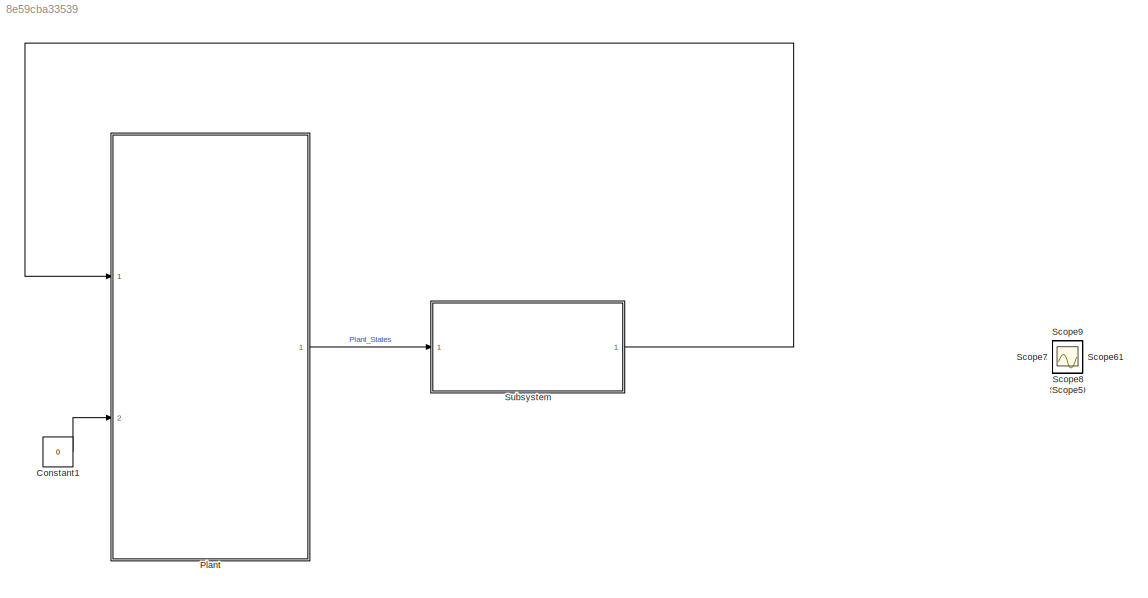
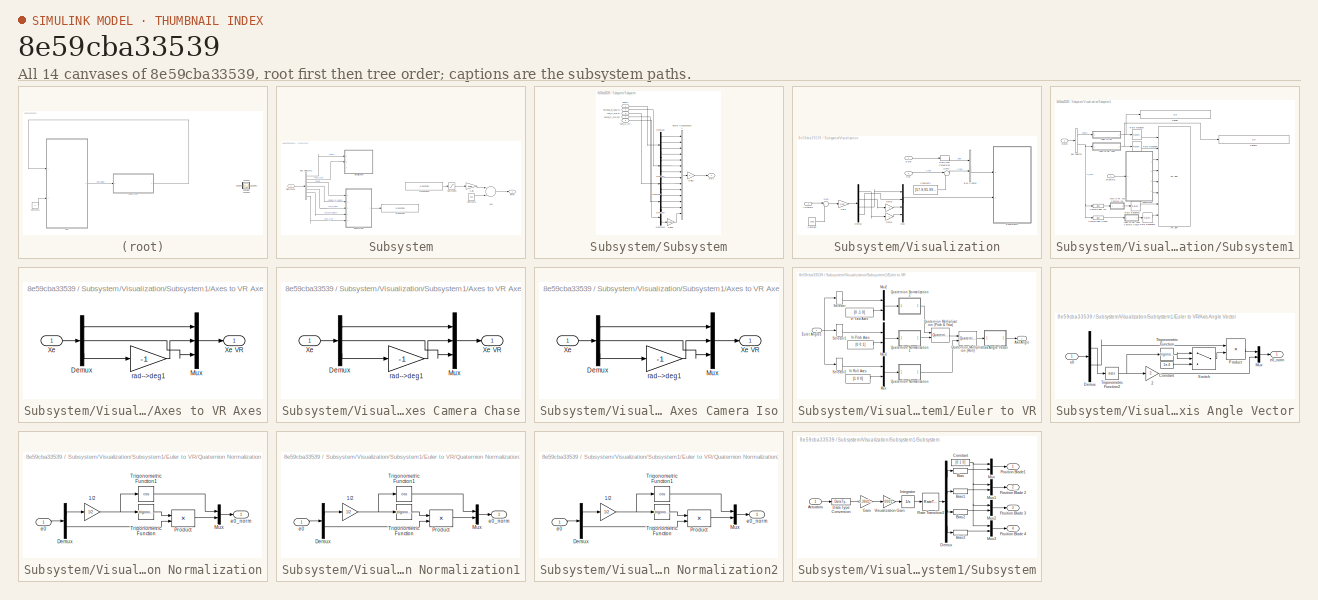
[diagram: thumbnail index - all 14 canvases of the model, root first then tree order]
MODEL slx_8e59cba33539
KIND model
BLOCK [Constant] Constant1
  OutDataTypeStr = Inherit: Inherit via back propagation
  Value = 0
BLOCK [ModelReference] Plant
  ModelNameDialog = Model.slx
  ModelReferenceVersion = 1.125
  Ports = [2, 1]
BLOCK [Scope] Scope
  Floating = off
  IOType = viewer
  NumInputPorts = 1
  Ports = []
  ScopeSpecificationString = Simulink.scopes.TimeScopeBlockCfg('CurrentConfiguration', extmgr.ConfigurationSet(extmgr.Configuration('Core','General UI',true),extmgr.Configuration('Core','Source UI',true),extmgr.Configuration('Sources','WiredSimulink',true),extmgr.Configuration('Visuals','Time Domain',true,'SerializedDisplays',{struct('MinYLimReal','-0.32725','MaxYLimReal','0.32725','YLabelReal','','MinYLimMag','0.00000','MaxY...<+1350ch>
BLOCK [Scope] Scope1
  Floating = off
  IOType = viewer
  NumInputPorts = 1
  Ports = []
  ScopeSpecificationString = Simulink.scopes.TimeScopeBlockCfg('CurrentConfiguration', extmgr.ConfigurationSet(extmgr.Configuration('Core','General UI',true),extmgr.Configuration('Core','Source UI',true),extmgr.Configuration('Sources','WiredSimulink',true,'DataLoggingVariableName','ScopeData1'),extmgr.Configuration('Visuals','Time Domain',true,'SerializedDisplays',{struct('MinYLimReal','-0.32725','MaxYLimReal','0.32725','YLab...<+1389ch>
BLOCK [Scope] Scope10
  Floating = off
  IOType = viewer
  NumInputPorts = 1
  Ports = []
  ScopeSpecificationString = Simulink.scopes.TimeScopeBlockCfg('CurrentConfiguration', extmgr.ConfigurationSet(extmgr.Configuration('Core','General UI',true),extmgr.Configuration('Core','Source UI',true),extmgr.Configuration('Sources','WiredSimulink',true,'DataLoggingVariableName','ScopeData2'),extmgr.Configuration('Visuals','Time Domain',true,'SerializedDisplays',{struct('MinYLimReal','-0.5','MaxYLimReal','-0.3','YLabelReal'...<+1392ch>
BLOCK [Scope] Scope11
  Floating = off
  IOType = viewer
  NumInputPorts = 1
  Ports = []
  ScopeSpecificationString = Simulink.scopes.TimeScopeBlockCfg('CurrentConfiguration', extmgr.ConfigurationSet(extmgr.Configuration('Core','General UI',true),extmgr.Configuration('Core','Source UI',true),extmgr.Configuration('Sources','WiredSimulink',true,'DataLoggingVariableName','ScopeData3'),extmgr.Configuration('Visuals','Time Domain',true,'SerializedDisplays',{struct('MinYLimReal','-1.00000','MaxYLimReal','1.00000','YLab...<+1389ch>
BLOCK [Scope] Scope2
  Floating = off
  IOType = viewer
  NumInputPorts = 1
  Ports = []
  ScopeSpecificationString = Simulink.scopes.TimeScopeBlockCfg('CurrentConfiguration', extmgr.ConfigurationSet(extmgr.Configuration('Core','General UI',true),extmgr.Configuration('Core','Source UI',true),extmgr.Configuration('Sources','WiredSimulink',true,'DataLoggingVariableName','ScopeData2'),extmgr.Configuration('Visuals','Time Domain',true,'SerializedDisplays',{struct('MinYLimReal','-77.53625','MaxYLimReal','697.82627','Y...<+1399ch>
BLOCK [Scope] Scope3
  Floating = off
  IOType = viewer
  NumInputPorts = 1
  Ports = []
  ScopeSpecificationString = Simulink.scopes.TimeScopeBlockCfg('CurrentConfiguration', extmgr.ConfigurationSet(extmgr.Configuration('Core','General UI',true),extmgr.Configuration('Core','Source UI',true),extmgr.Configuration('Sources','WiredSimulink',true,'DataLoggingVariableName','ScopeData3'),extmgr.Configuration('Visuals','Time Domain',true,'SerializedDisplays',{struct('MinYLimReal','-71.5585','MaxYLimReal','644.02649','YL...<+1397ch>
BLOCK [Scope] Scope4
  Floating = off
  IOType = viewer
  NumInputPorts = 1
  Ports = []
  ScopeSpecificationString = Simulink.scopes.TimeScopeBlockCfg('CurrentConfiguration', extmgr.ConfigurationSet(extmgr.Configuration('Core','General UI',true),extmgr.Configuration('Core','Source UI',true),extmgr.Configuration('Sources','WiredSimulink',true,'DataLoggingVariableName','ScopeData4'),extmgr.Configuration('Visuals','Time Domain',true,'SerializedDisplays',{struct('MinYLimReal','-77.57989','MaxYLimReal','698.21897','Y...<+1399ch>
BLOCK [Scope] Scope5
  Floating = off
  IOType = viewer
  NumInputPorts = 1
  Ports = []
  ScopeSpecificationString = Simulink.scopes.TimeScopeBlockCfg('CurrentConfiguration', extmgr.ConfigurationSet(extmgr.Configuration('Core','General UI',true),extmgr.Configuration('Core','Source UI',true),extmgr.Configuration('Sources','WiredSimulink',true,'DataLoggingVariableName','ScopeData5'),extmgr.Configuration('Visuals','Time Domain',true,'SerializedDisplays',{struct('MinYLimReal','-0.00025','MaxYLimReal','0.00225','YLab...<+1414ch>
BLOCK [Scope] Scope6
  Floating = off
  IOType = viewer
  NumInputPorts = 1
  Ports = []
  ScopeSpecificationString = Simulink.scopes.TimeScopeBlockCfg('CurrentConfiguration', extmgr.ConfigurationSet(extmgr.Configuration('Core','General UI',true),extmgr.Configuration('Core','Source UI',true),extmgr.Configuration('Sources','WiredSimulink',true,'DataLoggingVariableName','ScopeData6'),extmgr.Configuration('Visuals','Time Domain',true,'SerializedDisplays',{struct('MinYLimReal','-0.4345','MaxYLimReal','0.0505','YLabel...<+1383ch>
BLOCK [Scope] Scope7
  Floating = off
  IOType = viewer
  NumInputPorts = 1
  Ports = []
  ScopeSpecificationString = Simulink.scopes.TimeScopeBlockCfg('CurrentConfiguration', extmgr.ConfigurationSet(extmgr.Configuration('Core','General UI',true),extmgr.Configuration('Core','Source UI',true),extmgr.Configuration('Sources','WiredSimulink',true,'DataLoggingVariableName','ScopeData1'),extmgr.Configuration('Visuals','Time Domain',true,'SerializedDisplays',{struct('MinYLimReal','-1.6835','MaxYLimReal','-1.6685','YLabe...<+1409ch>
BLOCK [Scope] Scope8
  Floating = off
  IOType = viewer
  NumInputPorts = 1
  Ports = []
  ScopeSpecificationString = Simulink.scopes.TimeScopeBlockCfg('CurrentConfiguration', extmgr.ConfigurationSet(extmgr.Configuration('Core','General UI',true),extmgr.Configuration('Core','Source UI',true),extmgr.Configuration('Sources','WiredSimulink',true,'DataLoggingVariableName','ScopeData1'),extmgr.Configuration('Visuals','Time Domain',true,'SerializedDisplays',{struct('MinYLimReal','-1.00000','MaxYLimReal','1.00000','YLab...<+1388ch>
BLOCK [Scope] Scope9
  Floating = off
  IOType = viewer
  NumInputPorts = 1
  Ports = []
  ScopeSpecificationString = Simulink.scopes.TimeScopeBlockCfg('CurrentConfiguration', extmgr.ConfigurationSet(extmgr.Configuration('Core','General UI',true),extmgr.Configuration('Core','Source UI',true),extmgr.Configuration('Sources','WiredSimulink',true,'DataLoggingVariableName','ScopeData1'),extmgr.Configuration('Visuals','Time Domain',true,'SerializedDisplays',{struct('MinYLimReal','-1.00000','MaxYLimReal','1.00000','YLab...<+1449ch>
BLOCK [SubSystem] Subsystem
  Ports = [1, 1]
  RequestExecContextInheritance = off
BLOCK [Sum] Subsystem/Add
  InputSameDT = off
  OutDataTypeStr = Inherit: Inherit via internal rule
  Ports = [2, 1]
  SaturateOnIntegerOverflow = off
BLOCK [BusSelector] Subsystem/Bus Selector2
  OutputAsBus = off
  OutputSignals = euler,pos_O_m,quat,omega_B_radDs,vel_O_mDs,accel_O_mDs2,pos_O_m
  Ports = [1, 7]
BLOCK [Constant] Subsystem/Constant2
  OutDataTypeStr = uint16
  Value = 950
BLOCK [Gain] Subsystem/Gain
  Gain = 1000
  OutDataTypeStr = uint16
  ParamDataTypeStr = Inherit: Inherit via internal rule
  SaturateOnIntegerOverflow = off
BLOCK [Outport] Subsystem/PWM
  IconDisplay = Port number
BLOCK [Inport] Subsystem/PlantState
  IconDisplay = Port number
BLOCK [S-Function] Subsystem/S-Function
  EnableBusSupport = off
  FunctionName = MavlinkSerial_InHilStateQuaternion
  Ports = [1]
  SFcnIsStateOwnerBlock = off
  SFunctionDeploymentMode = off
BLOCK [S-Function] Subsystem/S-Function1
  EnableBusSupport = off
  FunctionName = MavlinkSerial_OutActuatorControl
  Ports = [0, 1]
  SFcnIsStateOwnerBlock = off
  SFunctionDeploymentMode = off
BLOCK [Saturate] Subsystem/Saturation
  InputPortMap = u0
  LowerLimit = 0
  Ports = [1, 1]
  UpperLimit = 1
BLOCK [SubSystem] Subsystem/Subsystem
  Ports = [5, 1]
  RequestExecContextInheritance = off
BLOCK [Inport] Subsystem/Subsystem/<accel_O_mDs2>
  IconDisplay = Port number
  Port = 4
BLOCK [Inport] Subsystem/Subsystem/<omega_B_radDs>
  IconDisplay = Port number
  Port = 2
BLOCK [Inport] Subsystem/Subsystem/<pos_O_m>
  IconDisplay = Port number
  Port = 5
BLOCK [Inport] Subsystem/Subsystem/<quat>
  IconDisplay = Port number
BLOCK [Inport] Subsystem/Subsystem/<vel_O_mDs>
  IconDisplay = Port number
  Port = 3
BLOCK [Demux] Subsystem/Subsystem/Demux10
  DisplayOption = bar
  Outputs = 3
  Ports = [1, 3]
BLOCK [Demux] Subsystem/Subsystem/Demux6
  DisplayOption = bar
  Ports = [1, 4]
BLOCK [Demux] Subsystem/Subsystem/Demux7
  DisplayOption = bar
  Outputs = 3
  Ports = [1, 3]
BLOCK [Demux] Subsystem/Subsystem/Demux8
  DisplayOption = bar
  Outputs = 3
  Ports = [1, 3]
BLOCK [Demux] Subsystem/Subsystem/Demux9
  DisplayOption = bar
  Outputs = 3
  Ports = [1, 3]
BLOCK [Gain] Subsystem/Subsystem/Gain2
  OutDataTypeStr = double
  ParamDataTypeStr = Inherit: Inherit via internal rule
  SaturateOnIntegerOverflow = off
BLOCK [Gain] Subsystem/Subsystem/Gain3
  Gain = 1000
  OutDataTypeStr = Inherit: Inherit via internal rule
  ParamDataTypeStr = Inherit: Inherit via internal rule
  SaturateOnIntegerOverflow = off
BLOCK [Outport] Subsystem/Subsystem/Out1
  IconDisplay = Port number
BLOCK [Concatenate] Subsystem/Subsystem/Vector Concatenate1
  NumInputs = 14
  Ports = [14, 1]
BLOCK [SubSystem] Subsystem/Visualization
  Ports = [3]
  RequestExecContextInheritance = off
BLOCK [Inport] Subsystem/Visualization/Actuators
  IconDisplay = Port number
  Port = 3
BLOCK [BusCreator] Subsystem/Visualization/Bus Creator
  DisplayOption = bar
  InheritFromInputs = on
  Inputs = 2
  Ports = [2, 1]
BLOCK [Constant] Subsystem/Visualization/Constant
  OutDataTypeStr = uint16
  Value = 1000
BLOCK [Constant] Subsystem/Visualization/Constant4
  OutDataTypeStr = Inherit: Inherit via back propagation
  Value = [57.9;95.99;-0.67]
BLOCK [DataTypeConversion] Subsystem/Visualization/Data Type Conversion
  RndMeth = Floor
  SaturateOnIntegerOverflow = off
BLOCK [Demux] Subsystem/Visualization/Demux
  DisplayOption = bar
  Ports = [1, 4]
BLOCK [Inport] Subsystem/Visualization/Euler
  IconDisplay = Port number
BLOCK [Gain] Subsystem/Visualization/Gain
  Gain = 0.05
  ParamDataTypeStr = Inherit: Inherit via internal rule
  SaturateOnIntegerOverflow = off
BLOCK [Gain] Subsystem/Visualization/Gain1
  Gain = -1
  ParamDataTypeStr = Inherit: Inherit via internal rule
  SaturateOnIntegerOverflow = off
BLOCK [Gain] Subsystem/Visualization/Gain2
  Gain = -1
  ParamDataTypeStr = Inherit: Inherit via internal rule
  SaturateOnIntegerOverflow = off
BLOCK [Mux] Subsystem/Visualization/Mux
  DisplayOption = bar
  Ports = [4, 1]
BLOCK [Inport] Subsystem/Visualization/Pos
  IconDisplay = Port number
  Port = 2
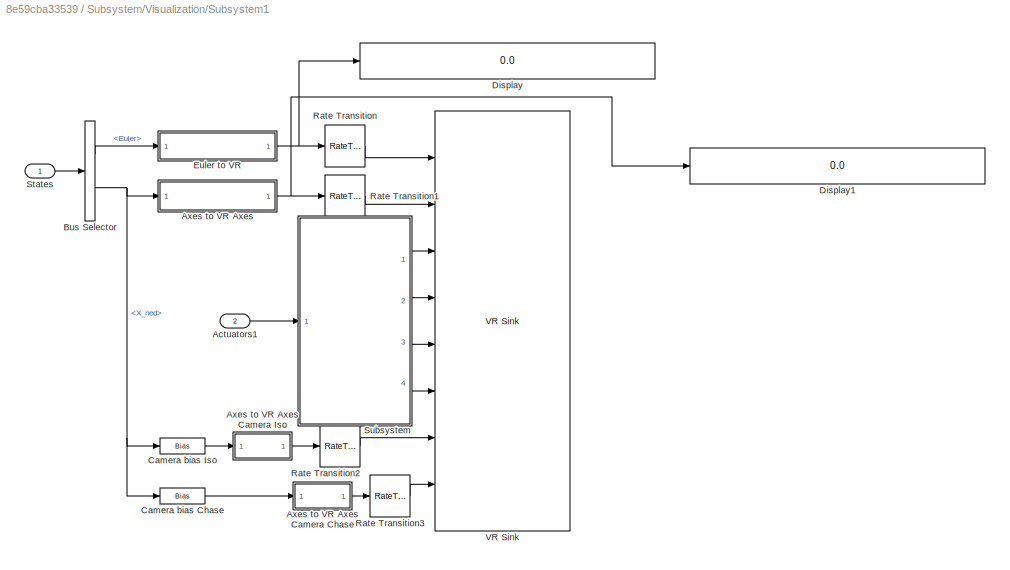
BLOCK [SubSystem] Subsystem/Visualization/Subsystem1
  Ports = [2]
  RequestExecContextInheritance = off
BLOCK [Inport] Subsystem/Visualization/Subsystem1/Actuators1
  IconDisplay = Port number
  Port = 2
BLOCK [SubSystem] Subsystem/Visualization/Subsystem1/Axes to VR Axes
  Ports = [1, 1]
  RequestExecContextInheritance = off
BLOCK [SubSystem] Subsystem/Visualization/Subsystem1/Axes to VR Axes Camera Chase
  Ports = [1, 1]
  RequestExecContextInheritance = off
BLOCK [Demux] Subsystem/Visualization/Subsystem1/Axes to VR Axes Camera Chase/Demux
  Outputs = 3
  Ports = [1, 3]
BLOCK [Mux] Subsystem/Visualization/Subsystem1/Axes to VR Axes Camera Chase/Mux
  DisplayOption = bar
  Inputs = 3
  Ports = [3, 1]
BLOCK [Inport] Subsystem/Visualization/Subsystem1/Axes to VR Axes Camera Chase/Xe
  IconDisplay = Port number
BLOCK [Outport] Subsystem/Visualization/Subsystem1/Axes to VR Axes Camera Chase/Xe VR
  IconDisplay = Port number
BLOCK [Gain] Subsystem/Visualization/Subsystem1/Axes to VR Axes Camera Chase/rad-->deg1
  Gain = -1
BLOCK [SubSystem] Subsystem/Visualization/Subsystem1/Axes to VR Axes Camera Iso
  Ports = [1, 1]
  RequestExecContextInheritance = off
BLOCK [Demux] Subsystem/Visualization/Subsystem1/Axes to VR Axes Camera Iso/Demux
  Outputs = 3
  Ports = [1, 3]
BLOCK [Mux] Subsystem/Visualization/Subsystem1/Axes to VR Axes Camera Iso/Mux
  DisplayOption = bar
  Inputs = 3
  Ports = [3, 1]
BLOCK [Inport] Subsystem/Visualization/Subsystem1/Axes to VR Axes Camera Iso/Xe
  IconDisplay = Port number
BLOCK [Outport] Subsystem/Visualization/Subsystem1/Axes to VR Axes Camera Iso/Xe VR
  IconDisplay = Port number
BLOCK [Gain] Subsystem/Visualization/Subsystem1/Axes to VR Axes Camera Iso/rad-->deg1
  Gain = -1
BLOCK [Demux] Subsystem/Visualization/Subsystem1/Axes to VR Axes/Demux
  Outputs = 3
  Ports = [1, 3]
BLOCK [Mux] Subsystem/Visualization/Subsystem1/Axes to VR Axes/Mux
  DisplayOption = bar
  Inputs = 3
  Ports = [3, 1]
BLOCK [Inport] Subsystem/Visualization/Subsystem1/Axes to VR Axes/Xe
  IconDisplay = Port number
BLOCK [Outport] Subsystem/Visualization/Subsystem1/Axes to VR Axes/Xe VR
  IconDisplay = Port number
BLOCK [Gain] Subsystem/Visualization/Subsystem1/Axes to VR Axes/rad-->deg1
  Gain = -1
BLOCK [BusSelector] Subsystem/Visualization/Subsystem1/Bus Selector
  OutputAsBus = off
  OutputSignals = Euler,X_ned
  Ports = [1, 2]
BLOCK [Bias] Subsystem/Visualization/Subsystem1/Camera bias Chase
  Bias = [-4 0 -.9558]'
  SaturateOnIntegerOverflow = off
BLOCK [Bias] Subsystem/Visualization/Subsystem1/Camera bias Iso
  Bias = [0.9009 .99 -.6247]'
  SaturateOnIntegerOverflow = off
BLOCK [Display] Subsystem/Visualization/Subsystem1/Display
  Decimation = 1
  Ports = [1]
BLOCK [Display] Subsystem/Visualization/Subsystem1/Display1
  Decimation = 1
  Ports = [1]
BLOCK [SubSystem] Subsystem/Visualization/Subsystem1/Euler to VR
  Ports = [1, 1]
  RequestExecContextInheritance = off
BLOCK [Outport] Subsystem/Visualization/Subsystem1/Euler to VR/Axis Angle
  IconDisplay = Port number
BLOCK [SubSystem] Subsystem/Visualization/Subsystem1/Euler to VR/Axis Angle Vector
  Ports = [1, 1]
  RequestExecContextInheritance = off
BLOCK [Gain] Subsystem/Visualization/Subsystem1/Euler to VR/Axis Angle Vector/2
  Gain = 2
BLOCK [Constant] Subsystem/Visualization/Subsystem1/Euler to VR/Axis Angle Vector/Constant
  Value = 1e-6
BLOCK [Demux] Subsystem/Visualization/Subsystem1/Euler to VR/Axis Angle Vector/Demux
  Outputs = [1 3 ]
  Ports = [1, 2]
BLOCK [Mux] Subsystem/Visualization/Subsystem1/Euler to VR/Axis Angle Vector/Mux
  DisplayOption = bar
  Inputs = 2
  Ports = [2, 1]
BLOCK [Product] Subsystem/Visualization/Subsystem1/Euler to VR/Axis Angle Vector/Product
  Inputs = */
  Ports = [2, 1]
  RndMeth = Floor
BLOCK [Switch] Subsystem/Visualization/Subsystem1/Euler to VR/Axis Angle Vector/Switch
  Criteria = u2 ~= 0
  InputSameDT = off
  SaturateOnIntegerOverflow = off
BLOCK [Trigonometry] Subsystem/Visualization/Subsystem1/Euler to VR/Axis Angle Vector/Trigonometric Function
  Ports = [1, 1]
BLOCK [Trigonometry] Subsystem/Visualization/Subsystem1/Euler to VR/Axis Angle Vector/Trigonometric Function2
  Operator = acos
  Ports = [1, 1]
BLOCK [Inport] Subsystem/Visualization/Subsystem1/Euler to VR/Axis Angle Vector/e0
  IconDisplay = Port number
BLOCK [Outport] Subsystem/Visualization/Subsystem1/Euler to VR/Axis Angle Vector/e0_norm
  IconDisplay = Port number
BLOCK [Inport] Subsystem/Visualization/Subsystem1/Euler to VR/Euler Angles
  IconDisplay = Port number
BLOCK [Mux] Subsystem/Visualization/Subsystem1/Euler to VR/Mux
  DisplayOption = bar
  Inputs = 2
  Ports = [2, 1]
BLOCK [Mux] Subsystem/Visualization/Subsystem1/Euler to VR/Mux1
  DisplayOption = bar
  Inputs = 2
  Ports = [2, 1]
BLOCK [Mux] Subsystem/Visualization/Subsystem1/Euler to VR/Mux2
  DisplayOption = bar
  Inputs = 2
  Ports = [2, 1]
BLOCK [Reference] Subsystem/Visualization/Subsystem1/Euler to VR/Quaternion Multiplication (Pitch & Yaw)  REF=aerolibutil/Quaternion
Multiplication
  Ports = [2, 1]
  SourceBlock = aerolibutil/Quaternion\nMultiplication
  SourceProductBaseCode = AE
  SourceProductName = Aerospace Blockset
  SourceType = Quaternion Multiplication
BLOCK [Reference] Subsystem/Visualization/Subsystem1/Euler to VR/Quaternion Multiplication (Roll)  REF=aerolibutil/Quaternion
Multiplication
  Ports = [2, 1]
  SourceBlock = aerolibutil/Quaternion\nMultiplication
  SourceProductBaseCode = AE
  SourceProductName = Aerospace Blockset
  SourceType = Quaternion Multiplication
BLOCK [SubSystem] Subsystem/Visualization/Subsystem1/Euler to VR/Quaternion Normalization
  Ports = [1, 1]
  RequestExecContextInheritance = off
BLOCK [Gain] Subsystem/Visualization/Subsystem1/Euler to VR/Quaternion Normalization/1//2
  Gain = 1/2
BLOCK [Demux] Subsystem/Visualization/Subsystem1/Euler to VR/Quaternion Normalization/Demux
  Outputs = [1 3]
  Ports = [1, 2]
BLOCK [Mux] Subsystem/Visualization/Subsystem1/Euler to VR/Quaternion Normalization/Mux
  DisplayOption = bar
  Inputs = 2
  Ports = [2, 1]
BLOCK [Product] Subsystem/Visualization/Subsystem1/Euler to VR/Quaternion Normalization/Product
  Ports = [2, 1]
  RndMeth = Floor
BLOCK [Trigonometry] Subsystem/Visualization/Subsystem1/Euler to VR/Quaternion Normalization/Trigonometric Function
  Ports = [1, 1]
BLOCK [Trigonometry] Subsystem/Visualization/Subsystem1/Euler to VR/Quaternion Normalization/Trigonometric Function1
  Operator = cos
  Ports = [1, 1]
BLOCK [Inport] Subsystem/Visualization/Subsystem1/Euler to VR/Quaternion Normalization/e0
  IconDisplay = Port number
BLOCK [Outport] Subsystem/Visualization/Subsystem1/Euler to VR/Quaternion Normalization/e0_norm
  IconDisplay = Port number
BLOCK [SubSystem] Subsystem/Visualization/Subsystem1/Euler to VR/Quaternion Normalization1
  Ports = [1, 1]
  RequestExecContextInheritance = off
BLOCK [Gain] Subsystem/Visualization/Subsystem1/Euler to VR/Quaternion Normalization1/1//2
  Gain = 1/2
BLOCK [Demux] Subsystem/Visualization/Subsystem1/Euler to VR/Quaternion Normalization1/Demux
  Outputs = [1 3]
  Ports = [1, 2]
BLOCK [Mux] Subsystem/Visualization/Subsystem1/Euler to VR/Quaternion Normalization1/Mux
  DisplayOption = bar
  Inputs = 2
  Ports = [2, 1]
BLOCK [Product] Subsystem/Visualization/Subsystem1/Euler to VR/Quaternion Normalization1/Product
  Ports = [2, 1]
  RndMeth = Floor
BLOCK [Trigonometry] Subsystem/Visualization/Subsystem1/Euler to VR/Quaternion Normalization1/Trigonometric Function
  Ports = [1, 1]
BLOCK [Trigonometry] Subsystem/Visualization/Subsystem1/Euler to VR/Quaternion Normalization1/Trigonometric Function1
  Operator = cos
  Ports = [1, 1]
BLOCK [Inport] Subsystem/Visualization/Subsystem1/Euler to VR/Quaternion Normalization1/e0
  IconDisplay = Port number
BLOCK [Outport] Subsystem/Visualization/Subsystem1/Euler to VR/Quaternion Normalization1/e0_norm
  IconDisplay = Port number
BLOCK [SubSystem] Subsystem/Visualization/Subsystem1/Euler to VR/Quaternion Normalization2
  Ports = [1, 1]
  RequestExecContextInheritance = off
BLOCK [Gain] Subsystem/Visualization/Subsystem1/Euler to VR/Quaternion Normalization2/1//2
  Gain = 1/2
BLOCK [Demux] Subsystem/Visualization/Subsystem1/Euler to VR/Quaternion Normalization2/Demux
  Outputs = [1 3]
  Ports = [1, 2]
BLOCK [Mux] Subsystem/Visualization/Subsystem1/Euler to VR/Quaternion Normalization2/Mux
  DisplayOption = bar
  Inputs = 2
  Ports = [2, 1]
BLOCK [Product] Subsystem/Visualization/Subsystem1/Euler to VR/Quaternion Normalization2/Product
  Ports = [2, 1]
  RndMeth = Floor
BLOCK [Trigonometry] Subsystem/Visualization/Subsystem1/Euler to VR/Quaternion Normalization2/Trigonometric Function
  Ports = [1, 1]
BLOCK [Trigonometry] Subsystem/Visualization/Subsystem1/Euler to VR/Quaternion Normalization2/Trigonometric Function1
  Operator = cos
  Ports = [1, 1]
BLOCK [Inport] Subsystem/Visualization/Subsystem1/Euler to VR/Quaternion Normalization2/e0
  IconDisplay = Port number
BLOCK [Outport] Subsystem/Visualization/Subsystem1/Euler to VR/Quaternion Normalization2/e0_norm
  IconDisplay = Port number
BLOCK [Selector] Subsystem/Visualization/Subsystem1/Euler to VR/Selector
  IndexOptions = Index vector (dialog)
  Indices = [3]
  InputPortWidth = 3
  OutputSizes = 1
  Ports = [1, 1]
BLOCK [Selector] Subsystem/Visualization/Subsystem1/Euler to VR/Selector1
  IndexOptions = Index vector (dialog)
  Indices = [2]
  InputPortWidth = 3
  OutputSizes = 1
  Ports = [1, 1]
BLOCK [Selector] Subsystem/Visualization/Subsystem1/Euler to VR/Selector2
  IndexOptions = Index vector (dialog)
  Indices = [1]
  InputPortWidth = 3
  OutputSizes = 1
  Ports = [1, 1]
BLOCK [Constant] Subsystem/Visualization/Subsystem1/Euler to VR/Vr Pitch Axes
  Value = [0 0 1]
BLOCK [Constant] Subsystem/Visualization/Subsystem1/Euler to VR/Vr Roll Axes
  Value = [1 0 0]
BLOCK [Constant] Subsystem/Visualization/Subsystem1/Euler to VR/Vr Yaw Axes
  Value = [0 -1 0]
BLOCK [RateTransition] Subsystem/Visualization/Subsystem1/Rate Transition
BLOCK [RateTransition] Subsystem/Visualization/Subsystem1/Rate Transition1
BLOCK [RateTransition] Subsystem/Visualization/Subsystem1/Rate Transition2
BLOCK [RateTransition] Subsystem/Visualization/Subsystem1/Rate Transition3
BLOCK [Inport] Subsystem/Visualization/Subsystem1/States
  IconDisplay = Port number
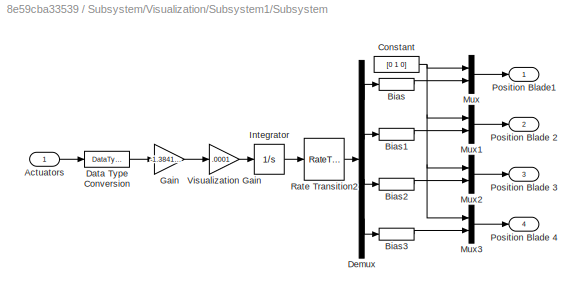
BLOCK [SubSystem] Subsystem/Visualization/Subsystem1/Subsystem
  Ports = [1, 4]
  RequestExecContextInheritance = off
BLOCK [Inport] Subsystem/Visualization/Subsystem1/Subsystem/Actuators
  IconDisplay = Port number
BLOCK [Bias] Subsystem/Visualization/Subsystem1/Subsystem/Bias
  Bias = .1
  SaturateOnIntegerOverflow = off
BLOCK [Bias] Subsystem/Visualization/Subsystem1/Subsystem/Bias1
  Bias = -.3
  SaturateOnIntegerOverflow = off
BLOCK [Bias] Subsystem/Visualization/Subsystem1/Subsystem/Bias2
  Bias = .5
  SaturateOnIntegerOverflow = off
BLOCK [Bias] Subsystem/Visualization/Subsystem1/Subsystem/Bias3
  Bias = .7
  SaturateOnIntegerOverflow = off
BLOCK [Constant] Subsystem/Visualization/Subsystem1/Subsystem/Constant
  Value = [0 1 0]
BLOCK [DataTypeConversion] Subsystem/Visualization/Subsystem1/Subsystem/Data Type Conversion
  OutDataTypeStr = double
  RndMeth = Floor
  SaturateOnIntegerOverflow = off
BLOCK [Demux] Subsystem/Visualization/Subsystem1/Subsystem/Demux
  DisplayOption = bar
  Ports = [1, 4]
BLOCK [Gain] Subsystem/Visualization/Subsystem1/Subsystem/Gain
  Gain = -1.3841e+04
  OutDataTypeStr = Inherit: Inherit via internal rule
  ParamDataTypeStr = Inherit: Inherit via internal rule
  SaturateOnIntegerOverflow = off
BLOCK [Integrator] Subsystem/Visualization/Subsystem1/Subsystem/Integrator
  InitialCondition = [.1  .2 -.3 -.4]
  Ports = [1, 1]
  WrapState = on
  WrappedStateLowerValue = -2*pi
  WrappedStateUpperValue = 2*pi
BLOCK [Mux] Subsystem/Visualization/Subsystem1/Subsystem/Mux
  DisplayOption = bar
  Inputs = 2
  Ports = [2, 1]
BLOCK [Mux] Subsystem/Visualization/Subsystem1/Subsystem/Mux1
  DisplayOption = bar
  Inputs = 2
  Ports = [2, 1]
BLOCK [Mux] Subsystem/Visualization/Subsystem1/Subsystem/Mux2
  DisplayOption = bar
  Inputs = 2
  Ports = [2, 1]
BLOCK [Mux] Subsystem/Visualization/Subsystem1/Subsystem/Mux3
  DisplayOption = bar
  Inputs = 2
  Ports = [2, 1]
BLOCK [Outport] Subsystem/Visualization/Subsystem1/Subsystem/Position Blade 2
  IconDisplay = Port number
  Port = 2
BLOCK [Outport] Subsystem/Visualization/Subsystem1/Subsystem/Position Blade 3
  IconDisplay = Port number
  Port = 3
BLOCK [Outport] Subsystem/Visualization/Subsystem1/Subsystem/Position Blade 4
  IconDisplay = Port number
  Port = 4
BLOCK [Outport] Subsystem/Visualization/Subsystem1/Subsystem/Position Blade1
  IconDisplay = Port number
BLOCK [RateTransition] Subsystem/Visualization/Subsystem1/Subsystem/Rate Transition2
BLOCK [Gain] Subsystem/Visualization/Subsystem1/Subsystem/Visualization Gain
  Gain = .0001
  OutDataTypeStr = Inherit: Inherit via internal rule
  ParamDataTypeStr = Inherit: Inherit via internal rule
  SaturateOnIntegerOverflow = off
BLOCK [Reference] Subsystem/Visualization/Subsystem1/VR Sink  REF=vrlib/VR Sink
  InstantiateOnLoad = on
  Ports = [8]
  SourceBlock = vrlib/VR Sink
  SourceProductBaseCode = VR
  SourceProductName = Simulink 3D Animation
  SourceType = Virtual Reality Sink
BLOCK [Sum] Subsystem/Visualization/Sum
  IconShape = round
  InputSameDT = off
  Inputs = |+-
  OutDataTypeStr = single
  Ports = [2, 1]
  SaturateOnIntegerOverflow = off
BLOCK [Sum] Subsystem/Visualization/Sum1
  IconShape = round
  InputSameDT = off
  Inputs = |++
  OutDataTypeStr = Inherit: Inherit via internal rule
  Ports = [2, 1]
  SaturateOnIntegerOverflow = off
LINE Constant1:1 -> Plant:2
LINE Plant:1 -> Subsystem:1
LINE Subsystem/Add:1 -> Subsystem/PWM:1
LINE Subsystem/Bus Selector2:1 -> Subsystem/Visualization:1
LINE Subsystem/Bus Selector2:2 -> Subsystem/Visualization:2
LINE Subsystem/Bus Selector2:3 -> Subsystem/Subsystem:1
LINE Subsystem/Bus Selector2:4 -> Subsystem/Subsystem:2
LINE Subsystem/Bus Selector2:5 -> Subsystem/Subsystem:3
LINE Subsystem/Bus Selector2:6 -> Subsystem/Subsystem:4
LINE Subsystem/Bus Selector2:7 -> Subsystem/Subsystem:5
LINE Subsystem/Constant2:1 -> Subsystem/Add:2
LINE Subsystem/Gain:1 -> Subsystem/Add:1
LINE Subsystem/PlantState:1 -> Subsystem/Bus Selector2:1
LINE Subsystem/S-Function1:1 -> Subsystem/Saturation:1
LINE Subsystem/Saturation:1 -> Subsystem/Gain:1
LINE Subsystem/Subsystem/<accel_O_mDs2>:1 -> Subsystem/Subsystem/Demux9:1
LINE Subsystem/Subsystem/<omega_B_radDs>:1 -> Subsystem/Subsystem/Demux7:1
LINE Subsystem/Subsystem/<pos_O_m>:1 -> Subsystem/Subsystem/Demux10:1
LINE Subsystem/Subsystem/<quat>:1 -> Subsystem/Subsystem/Demux6:1
LINE Subsystem/Subsystem/<vel_O_mDs>:1 -> Subsystem/Subsystem/Demux8:1
LINE Subsystem/Subsystem/Demux10:3 -> Subsystem/Subsystem/Gain3:1
LINE Subsystem/Subsystem/Demux6:1 -> Subsystem/Subsystem/Vector Concatenate1:1
LINE Subsystem/Subsystem/Demux6:2 -> Subsystem/Subsystem/Vector Concatenate1:2
LINE Subsystem/Subsystem/Demux6:3 -> Subsystem/Subsystem/Vector Concatenate1:3
LINE Subsystem/Subsystem/Demux6:4 -> Subsystem/Subsystem/Vector Concatenate1:4
LINE Subsystem/Subsystem/Demux7:1 -> Subsystem/Subsystem/Vector Concatenate1:5
LINE Subsystem/Subsystem/Demux7:2 -> Subsystem/Subsystem/Vector Concatenate1:6
LINE Subsystem/Subsystem/Demux7:3 -> Subsystem/Subsystem/Vector Concatenate1:7
LINE Subsystem/Subsystem/Demux8:1 -> Subsystem/Subsystem/Vector Concatenate1:8
LINE Subsystem/Subsystem/Demux8:2 -> Subsystem/Subsystem/Vector Concatenate1:9
LINE Subsystem/Subsystem/Demux8:3 -> Subsystem/Subsystem/Vector Concatenate1:10
LINE Subsystem/Subsystem/Demux9:1 -> Subsystem/Subsystem/Vector Concatenate1:11
LINE Subsystem/Subsystem/Demux9:2 -> Subsystem/Subsystem/Vector Concatenate1:12
LINE Subsystem/Subsystem/Demux9:3 -> Subsystem/Subsystem/Vector Concatenate1:13
LINE Subsystem/Subsystem/Gain2:1 -> Subsystem/Subsystem/Out1:1
LINE Subsystem/Subsystem/Gain3:1 -> Subsystem/Subsystem/Vector Concatenate1:14
LINE Subsystem/Subsystem/Vector Concatenate1:1 -> Subsystem/Subsystem/Gain2:1
LINE Subsystem/Subsystem:1 -> Subsystem/S-Function:1
LINE Subsystem/Visualization/Actuators:1 -> Subsystem/Visualization/Sum:1
LINE Subsystem/Visualization/Bus Creator:1 -> Subsystem/Visualization/Subsystem1:1
LINE Subsystem/Visualization/Constant4:1 -> Subsystem/Visualization/Sum1:2
LINE Subsystem/Visualization/Constant:1 -> Subsystem/Visualization/Sum:2
LINE Subsystem/Visualization/Data Type Conversion:1 -> Subsystem/Visualization/Bus Creator:1
LINE Subsystem/Visualization/Demux:1 -> Subsystem/Visualization/Gain1:1
LINE Subsystem/Visualization/Demux:2 -> Subsystem/Visualization/Gain2:1
LINE Subsystem/Visualization/Demux:3 -> Subsystem/Visualization/Mux:1
LINE Subsystem/Visualization/Demux:4 -> Subsystem/Visualization/Mux:2
LINE Subsystem/Visualization/Euler:1 -> Subsystem/Visualization/Data Type Conversion:1
LINE Subsystem/Visualization/Gain1:1 -> Subsystem/Visualization/Mux:4
LINE Subsystem/Visualization/Gain2:1 -> Subsystem/Visualization/Mux:3
LINE Subsystem/Visualization/Gain:1 -> Subsystem/Visualization/Demux:1
LINE Subsystem/Visualization/Mux:1 -> Subsystem/Visualization/Subsystem1:2
LINE Subsystem/Visualization/Pos:1 -> Subsystem/Visualization/Sum1:1
LINE Subsystem/Visualization/Subsystem1/Actuators1:1 -> Subsystem/Visualization/Subsystem1/Subsystem:1
LINE Subsystem/Visualization/Subsystem1/Axes to VR Axes Camera Chase/Demux:1 -> Subsystem/Visualization/Subsystem1/Axes to VR Axes Camera Chase/Mux:1
LINE Subsystem/Visualization/Subsystem1/Axes to VR Axes Camera Chase/Demux:2 -> Subsystem/Visualization/Subsystem1/Axes to VR Axes Camera Chase/Mux:3
LINE Subsystem/Visualization/Subsystem1/Axes to VR Axes Camera Chase/Demux:3 -> Subsystem/Visualization/Subsystem1/Axes to VR Axes Camera Chase/rad-->deg1:1
LINE Subsystem/Visualization/Subsystem1/Axes to VR Axes Camera Chase/Mux:1 -> Subsystem/Visualization/Subsystem1/Axes to VR Axes Camera Chase/Xe VR:1
LINE Subsystem/Visualization/Subsystem1/Axes to VR Axes Camera Chase/Xe:1 -> Subsystem/Visualization/Subsystem1/Axes to VR Axes Camera Chase/Demux:1
LINE Subsystem/Visualization/Subsystem1/Axes to VR Axes Camera Chase/rad-->deg1:1 -> Subsystem/Visualization/Subsystem1/Axes to VR Axes Camera Chase/Mux:2
LINE Subsystem/Visualization/Subsystem1/Axes to VR Axes Camera Chase:1 -> Subsystem/Visualization/Subsystem1/Rate Transition3:1
LINE Subsystem/Visualization/Subsystem1/Axes to VR Axes Camera Iso/Demux:1 -> Subsystem/Visualization/Subsystem1/Axes to VR Axes Camera Iso/Mux:1
LINE Subsystem/Visualization/Subsystem1/Axes to VR Axes Camera Iso/Demux:2 -> Subsystem/Visualization/Subsystem1/Axes to VR Axes Camera Iso/Mux:3
LINE Subsystem/Visualization/Subsystem1/Axes to VR Axes Camera Iso/Demux:3 -> Subsystem/Visualization/Subsystem1/Axes to VR Axes Camera Iso/rad-->deg1:1
LINE Subsystem/Visualization/Subsystem1/Axes to VR Axes Camera Iso/Mux:1 -> Subsystem/Visualization/Subsystem1/Axes to VR Axes Camera Iso/Xe VR:1
LINE Subsystem/Visualization/Subsystem1/Axes to VR Axes Camera Iso/Xe:1 -> Subsystem/Visualization/Subsystem1/Axes to VR Axes Camera Iso/Demux:1
LINE Subsystem/Visualization/Subsystem1/Axes to VR Axes Camera Iso/rad-->deg1:1 -> Subsystem/Visualization/Subsystem1/Axes to VR Axes Camera Iso/Mux:2
LINE Subsystem/Visualization/Subsystem1/Axes to VR Axes Camera Iso:1 -> Subsystem/Visualization/Subsystem1/Rate Transition2:1
LINE Subsystem/Visualization/Subsystem1/Axes to VR Axes/Demux:1 -> Subsystem/Visualization/Subsystem1/Axes to VR Axes/Mux:1
LINE Subsystem/Visualization/Subsystem1/Axes to VR Axes/Demux:2 -> Subsystem/Visualization/Subsystem1/Axes to VR Axes/Mux:3
LINE Subsystem/Visualization/Subsystem1/Axes to VR Axes/Demux:3 -> Subsystem/Visualization/Subsystem1/Axes to VR Axes/rad-->deg1:1
LINE Subsystem/Visualization/Subsystem1/Axes to VR Axes/Mux:1 -> Subsystem/Visualization/Subsystem1/Axes to VR Axes/Xe VR:1
LINE Subsystem/Visualization/Subsystem1/Axes to VR Axes/Xe:1 -> Subsystem/Visualization/Subsystem1/Axes to VR Axes/Demux:1
LINE Subsystem/Visualization/Subsystem1/Axes to VR Axes/rad-->deg1:1 -> Subsystem/Visualization/Subsystem1/Axes to VR Axes/Mux:2
NET Subsystem/Visualization/Subsystem1/Axes to VR Axes:1 -> Subsystem/Visualization/Subsystem1/Display1:1, Subsystem/Visualization/Subsystem1/Rate Transition1:1
LINE Subsystem/Visualization/Subsystem1/Bus Selector:1 -> Subsystem/Visualization/Subsystem1/Euler to VR:1
NET Subsystem/Visualization/Subsystem1/Bus Selector:2 -> Subsystem/Visualization/Subsystem1/Axes to VR Axes:1, Subsystem/Visualization/Subsystem1/Camera bias Chase:1, Subsystem/Visualization/Subsystem1/Camera bias Iso:1
LINE Subsystem/Visualization/Subsystem1/Camera bias Chase:1 -> Subsystem/Visualization/Subsystem1/Axes to VR Axes Camera Chase:1
LINE Subsystem/Visualization/Subsystem1/Camera bias Iso:1 -> Subsystem/Visualization/Subsystem1/Axes to VR Axes Camera Iso:1
LINE Subsystem/Visualization/Subsystem1/Euler to VR/Axis Angle Vector/2:1 -> Subsystem/Visualization/Subsystem1/Euler to VR/Axis Angle Vector/Mux:2
LINE Subsystem/Visualization/Subsystem1/Euler to VR/Axis Angle Vector/Constant:1 -> Subsystem/Visualization/Subsystem1/Euler to VR/Axis Angle Vector/Switch:3
LINE Subsystem/Visualization/Subsystem1/Euler to VR/Axis Angle Vector/Demux:1 -> Subsystem/Visualization/Subsystem1/Euler to VR/Axis Angle Vector/Trigonometric Function2:1
LINE Subsystem/Visualization/Subsystem1/Euler to VR/Axis Angle Vector/Demux:2 -> Subsystem/Visualization/Subsystem1/Euler to VR/Axis Angle Vector/Product:1
LINE Subsystem/Visualization/Subsystem1/Euler to VR/Axis Angle Vector/Mux:1 -> Subsystem/Visualization/Subsystem1/Euler to VR/Axis Angle Vector/e0_norm:1
LINE Subsystem/Visualization/Subsystem1/Euler to VR/Axis Angle Vector/Product:1 -> Subsystem/Visualization/Subsystem1/Euler to VR/Axis Angle Vector/Mux:1
LINE Subsystem/Visualization/Subsystem1/Euler to VR/Axis Angle Vector/Switch:1 -> Subsystem/Visualization/Subsystem1/Euler to VR/Axis Angle Vector/Product:2
NET Subsystem/Visualization/Subsystem1/Euler to VR/Axis Angle Vector/Trigonometric Function2:1 -> Subsystem/Visualization/Subsystem1/Euler to VR/Axis Angle Vector/2:1, Subsystem/Visualization/Subsystem1/Euler to VR/Axis Angle Vector/Trigonometric Function:1
NET Subsystem/Visualization/Subsystem1/Euler to VR/Axis Angle Vector/Trigonometric Function:1 -> Subsystem/Visualization/Subsystem1/Euler to VR/Axis Angle Vector/Switch:1, Subsystem/Visualization/Subsystem1/Euler to VR/Axis Angle Vector/Switch:2
LINE Subsystem/Visualization/Subsystem1/Euler to VR/Axis Angle Vector/e0:1 -> Subsystem/Visualization/Subsystem1/Euler to VR/Axis Angle Vector/Demux:1
LINE Subsystem/Visualization/Subsystem1/Euler to VR/Axis Angle Vector:1 -> Subsystem/Visualization/Subsystem1/Euler to VR/Axis Angle:1
NET Subsystem/Visualization/Subsystem1/Euler to VR/Euler Angles:1 -> Subsystem/Visualization/Subsystem1/Euler to VR/Selector1:1, Subsystem/Visualization/Subsystem1/Euler to VR/Selector2:1, Subsystem/Visualization/Subsystem1/Euler to VR/Selector:1
LINE Subsystem/Visualization/Subsystem1/Euler to VR/Mux1:1 -> Subsystem/Visualization/Subsystem1/Euler to VR/Quaternion Normalization1:1
LINE Subsystem/Visualization/Subsystem1/Euler to VR/Mux2:1 -> Subsystem/Visualization/Subsystem1/Euler to VR/Quaternion Normalization2:1
LINE Subsystem/Visualization/Subsystem1/Euler to VR/Mux:1 -> Subsystem/Visualization/Subsystem1/Euler to VR/Quaternion Normalization:1
LINE Subsystem/Visualization/Subsystem1/Euler to VR/Quaternion Multiplication (Pitch & Yaw):1 -> Subsystem/Visualization/Subsystem1/Euler to VR/Quaternion Multiplication (Roll):1
LINE Subsystem/Visualization/Subsystem1/Euler to VR/Quaternion Multiplication (Roll):1 -> Subsystem/Visualization/Subsystem1/Euler to VR/Axis Angle Vector:1
NET Subsystem/Visualization/Subsystem1/Euler to VR/Quaternion Normalization/1//2:1 -> Subsystem/Visualization/Subsystem1/Euler to VR/Quaternion Normalization/Trigonometric Function1:1, Subsystem/Visualization/Subsystem1/Euler to VR/Quaternion Normalization/Trigonometric Function:1
LINE Subsystem/Visualization/Subsystem1/Euler to VR/Quaternion Normalization/Demux:1 -> Subsystem/Visualization/Subsystem1/Euler to VR/Quaternion Normalization/1//2:1
LINE Subsystem/Visualization/Subsystem1/Euler to VR/Quaternion Normalization/Demux:2 -> Subsystem/Visualization/Subsystem1/Euler to VR/Quaternion Normalization/Product:2
LINE Subsystem/Visualization/Subsystem1/Euler to VR/Quaternion Normalization/Mux:1 -> Subsystem/Visualization/Subsystem1/Euler to VR/Quaternion Normalization/e0_norm:1
LINE Subsystem/Visualization/Subsystem1/Euler to VR/Quaternion Normalization/Product:1 -> Subsystem/Visualization/Subsystem1/Euler to VR/Quaternion Normalization/Mux:2
LINE Subsystem/Visualization/Subsystem1/Euler to VR/Quaternion Normalization/Trigonometric Function1:1 -> Subsystem/Visualization/Subsystem1/Euler to VR/Quaternion Normalization/Mux:1
LINE Subsystem/Visualization/Subsystem1/Euler to VR/Quaternion Normalization/Trigonometric Function:1 -> Subsystem/Visualization/Subsystem1/Euler to VR/Quaternion Normalization/Product:1
LINE Subsystem/Visualization/Subsystem1/Euler to VR/Quaternion Normalization/e0:1 -> Subsystem/Visualization/Subsystem1/Euler to VR/Quaternion Normalization/Demux:1
NET Subsystem/Visualization/Subsystem1/Euler to VR/Quaternion Normalization1/1//2:1 -> Subsystem/Visualization/Subsystem1/Euler to VR/Quaternion Normalization1/Trigonometric Function1:1, Subsystem/Visualization/Subsystem1/Euler to VR/Quaternion Normalization1/Trigonometric Function:1
LINE Subsystem/Visualization/Subsystem1/Euler to VR/Quaternion Normalization1/Demux:1 -> Subsystem/Visualization/Subsystem1/Euler to VR/Quaternion Normalization1/1//2:1
LINE Subsystem/Visualization/Subsystem1/Euler to VR/Quaternion Normalization1/Demux:2 -> Subsystem/Visualization/Subsystem1/Euler to VR/Quaternion Normalization1/Product:2
LINE Subsystem/Visualization/Subsystem1/Euler to VR/Quaternion Normalization1/Mux:1 -> Subsystem/Visualization/Subsystem1/Euler to VR/Quaternion Normalization1/e0_norm:1
LINE Subsystem/Visualization/Subsystem1/Euler to VR/Quaternion Normalization1/Product:1 -> Subsystem/Visualization/Subsystem1/Euler to VR/Quaternion Normalization1/Mux:2
LINE Subsystem/Visualization/Subsystem1/Euler to VR/Quaternion Normalization1/Trigonometric Function1:1 -> Subsystem/Visualization/Subsystem1/Euler to VR/Quaternion Normalization1/Mux:1
LINE Subsystem/Visualization/Subsystem1/Euler to VR/Quaternion Normalization1/Trigonometric Function:1 -> Subsystem/Visualization/Subsystem1/Euler to VR/Quaternion Normalization1/Product:1
LINE Subsystem/Visualization/Subsystem1/Euler to VR/Quaternion Normalization1/e0:1 -> Subsystem/Visualization/Subsystem1/Euler to VR/Quaternion Normalization1/Demux:1
LINE Subsystem/Visualization/Subsystem1/Euler to VR/Quaternion Normalization1:1 -> Subsystem/Visualization/Subsystem1/Euler to VR/Quaternion Multiplication (Pitch & Yaw):2
NET Subsystem/Visualization/Subsystem1/Euler to VR/Quaternion Normalization2/1//2:1 -> Subsystem/Visualization/Subsystem1/Euler to VR/Quaternion Normalization2/Trigonometric Function1:1, Subsystem/Visualization/Subsystem1/Euler to VR/Quaternion Normalization2/Trigonometric Function:1
LINE Subsystem/Visualization/Subsystem1/Euler to VR/Quaternion Normalization2/Demux:1 -> Subsystem/Visualization/Subsystem1/Euler to VR/Quaternion Normalization2/1//2:1
LINE Subsystem/Visualization/Subsystem1/Euler to VR/Quaternion Normalization2/Demux:2 -> Subsystem/Visualization/Subsystem1/Euler to VR/Quaternion Normalization2/Product:2
LINE Subsystem/Visualization/Subsystem1/Euler to VR/Quaternion Normalization2/Mux:1 -> Subsystem/Visualization/Subsystem1/Euler to VR/Quaternion Normalization2/e0_norm:1
LINE Subsystem/Visualization/Subsystem1/Euler to VR/Quaternion Normalization2/Product:1 -> Subsystem/Visualization/Subsystem1/Euler to VR/Quaternion Normalization2/Mux:2
LINE Subsystem/Visualization/Subsystem1/Euler to VR/Quaternion Normalization2/Trigonometric Function1:1 -> Subsystem/Visualization/Subsystem1/Euler to VR/Quaternion Normalization2/Mux:1
LINE Subsystem/Visualization/Subsystem1/Euler to VR/Quaternion Normalization2/Trigonometric Function:1 -> Subsystem/Visualization/Subsystem1/Euler to VR/Quaternion Normalization2/Product:1
LINE Subsystem/Visualization/Subsystem1/Euler to VR/Quaternion Normalization2/e0:1 -> Subsystem/Visualization/Subsystem1/Euler to VR/Quaternion Normalization2/Demux:1
LINE Subsystem/Visualization/Subsystem1/Euler to VR/Quaternion Normalization2:1 -> Subsystem/Visualization/Subsystem1/Euler to VR/Quaternion Multiplication (Pitch & Yaw):1
LINE Subsystem/Visualization/Subsystem1/Euler to VR/Quaternion Normalization:1 -> Subsystem/Visualization/Subsystem1/Euler to VR/Quaternion Multiplication (Roll):2
LINE Subsystem/Visualization/Subsystem1/Euler to VR/Selector1:1 -> Subsystem/Visualization/Subsystem1/Euler to VR/Mux1:1
LINE Subsystem/Visualization/Subsystem1/Euler to VR/Selector2:1 -> Subsystem/Visualization/Subsystem1/Euler to VR/Mux:1
LINE Subsystem/Visualization/Subsystem1/Euler to VR/Selector:1 -> Subsystem/Visualization/Subsystem1/Euler to VR/Mux2:1
LINE Subsystem/Visualization/Subsystem1/Euler to VR/Vr Pitch Axes:1 -> Subsystem/Visualization/Subsystem1/Euler to VR/Mux1:2
LINE Subsystem/Visualization/Subsystem1/Euler to VR/Vr Roll Axes:1 -> Subsystem/Visualization/Subsystem1/Euler to VR/Mux:2
LINE Subsystem/Visualization/Subsystem1/Euler to VR/Vr Yaw Axes:1 -> Subsystem/Visualization/Subsystem1/Euler to VR/Mux2:2
NET Subsystem/Visualization/Subsystem1/Euler to VR:1 -> Subsystem/Visualization/Subsystem1/Display:1, Subsystem/Visualization/Subsystem1/Rate Transition:1
LINE Subsystem/Visualization/Subsystem1/Rate Transition1:1 -> Subsystem/Visualization/Subsystem1/VR Sink:2
LINE Subsystem/Visualization/Subsystem1/Rate Transition2:1 -> Subsystem/Visualization/Subsystem1/VR Sink:7
LINE Subsystem/Visualization/Subsystem1/Rate Transition3:1 -> Subsystem/Visualization/Subsystem1/VR Sink:8
LINE Subsystem/Visualization/Subsystem1/Rate Transition:1 -> Subsystem/Visualization/Subsystem1/VR Sink:1
LINE Subsystem/Visualization/Subsystem1/States:1 -> Subsystem/Visualization/Subsystem1/Bus Selector:1
LINE Subsystem/Visualization/Subsystem1/Subsystem/Actuators:1 -> Subsystem/Visualization/Subsystem1/Subsystem/Data Type Conversion:1
LINE Subsystem/Visualization/Subsystem1/Subsystem/Bias1:1 -> Subsystem/Visualization/Subsystem1/Subsystem/Mux1:2
LINE Subsystem/Visualization/Subsystem1/Subsystem/Bias2:1 -> Subsystem/Visualization/Subsystem1/Subsystem/Mux2:2
LINE Subsystem/Visualization/Subsystem1/Subsystem/Bias3:1 -> Subsystem/Visualization/Subsystem1/Subsystem/Mux3:2
LINE Subsystem/Visualization/Subsystem1/Subsystem/Bias:1 -> Subsystem/Visualization/Subsystem1/Subsystem/Mux:2
NET Subsystem/Visualization/Subsystem1/Subsystem/Constant:1 -> Subsystem/Visualization/Subsystem1/Subsystem/Mux1:1, Subsystem/Visualization/Subsystem1/Subsystem/Mux2:1, Subsystem/Visualization/Subsystem1/Subsystem/Mux3:1, Subsystem/Visualization/Subsystem1/Subsystem/Mux:1
LINE Subsystem/Visualization/Subsystem1/Subsystem/Data Type Conversion:1 -> Subsystem/Visualization/Subsystem1/Subsystem/Gain:1
LINE Subsystem/Visualization/Subsystem1/Subsystem/Demux:1 -> Subsystem/Visualization/Subsystem1/Subsystem/Bias:1
LINE Subsystem/Visualization/Subsystem1/Subsystem/Demux:2 -> Subsystem/Visualization/Subsystem1/Subsystem/Bias1:1
LINE Subsystem/Visualization/Subsystem1/Subsystem/Demux:3 -> Subsystem/Visualization/Subsystem1/Subsystem/Bias2:1
LINE Subsystem/Visualization/Subsystem1/Subsystem/Demux:4 -> Subsystem/Visualization/Subsystem1/Subsystem/Bias3:1
LINE Subsystem/Visualization/Subsystem1/Subsystem/Gain:1 -> Subsystem/Visualization/Subsystem1/Subsystem/Visualization Gain:1
LINE Subsystem/Visualization/Subsystem1/Subsystem/Integrator:1 -> Subsystem/Visualization/Subsystem1/Subsystem/Rate Transition2:1
LINE Subsystem/Visualization/Subsystem1/Subsystem/Mux1:1 -> Subsystem/Visualization/Subsystem1/Subsystem/Position Blade 2:1
LINE Subsystem/Visualization/Subsystem1/Subsystem/Mux2:1 -> Subsystem/Visualization/Subsystem1/Subsystem/Position Blade 3:1
LINE Subsystem/Visualization/Subsystem1/Subsystem/Mux3:1 -> Subsystem/Visualization/Subsystem1/Subsystem/Position Blade 4:1
LINE Subsystem/Visualization/Subsystem1/Subsystem/Mux:1 -> Subsystem/Visualization/Subsystem1/Subsystem/Position Blade1:1
LINE Subsystem/Visualization/Subsystem1/Subsystem/Rate Transition2:1 -> Subsystem/Visualization/Subsystem1/Subsystem/Demux:1
LINE Subsystem/Visualization/Subsystem1/Subsystem/Visualization Gain:1 -> Subsystem/Visualization/Subsystem1/Subsystem/Integrator:1
LINE Subsystem/Visualization/Subsystem1/Subsystem:1 -> Subsystem/Visualization/Subsystem1/VR Sink:3
LINE Subsystem/Visualization/Subsystem1/Subsystem:2 -> Subsystem/Visualization/Subsystem1/VR Sink:4
LINE Subsystem/Visualization/Subsystem1/Subsystem:3 -> Subsystem/Visualization/Subsystem1/VR Sink:5
LINE Subsystem/Visualization/Subsystem1/Subsystem:4 -> Subsystem/Visualization/Subsystem1/VR Sink:6
LINE Subsystem/Visualization/Sum1:1 -> Subsystem/Visualization/Bus Creator:2
LINE Subsystem/Visualization/Sum:1 -> Subsystem/Visualization/Gain:1
LINE Subsystem:1 -> Plant:1
note: NET lines group one-source signal fan-out (src -> all destinations, sorted); 1:1 wires keep LINE
